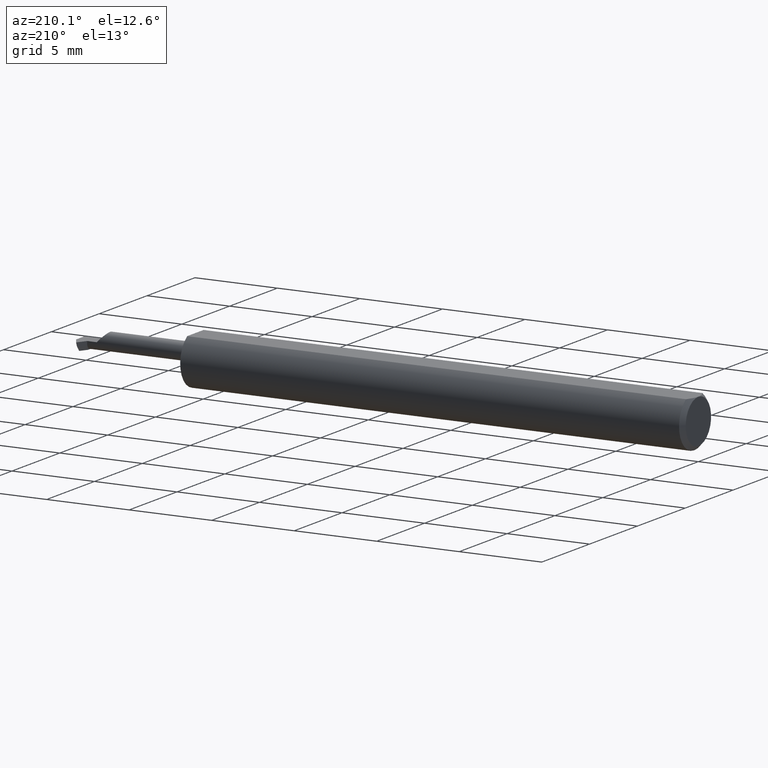
[diagram: clean part render]
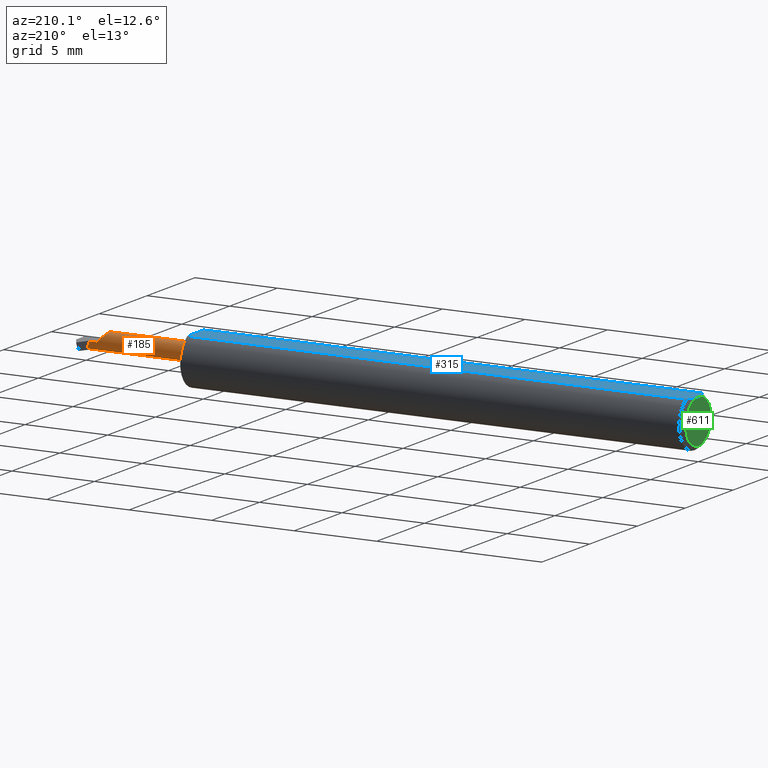
[diagram: same view with three faces highlighted in distinct colors, each labeled with its STEP entity id]
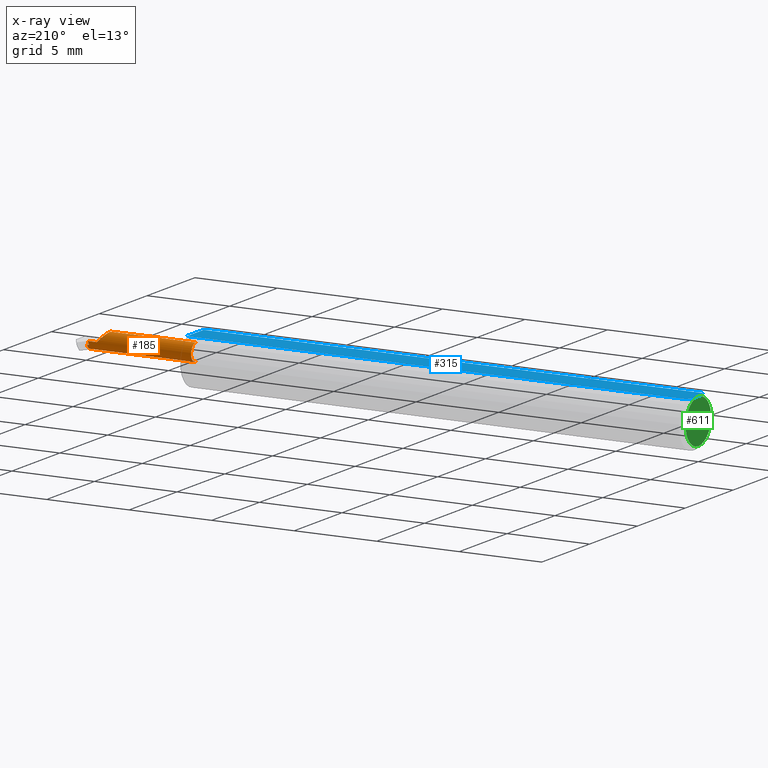
[diagram: x-ray of the same camera — body ghosted, the three highlighted faces saturated]
A machine part, auxiliary view with three faces highlighted in distinct colors.
The next image is the same camera in x-ray (body ghosted, the three faces saturated) — at least one of them is partly hidden behind the body in this view.
Their STEP definitions:

[orange] entity #185 — the highlighted cylindrical surface (edge-blend (fillet) strip) has radius 0.5207 mm, axis along (-1, -0, -0).
#9 =( BOUNDED_CURVE ( )  B_SPLINE_CURVE ( 3, ( #364, #112, #440, #378 ),
 .UNSPECIFIED., .F., .T. ) 
 B_SPLINE_CURVE_WITH_KNOTS ( ( 4, 4 ),
 ( 0.000000000000000000, 1.570796326794895670 ),
 .UNSPECIFIED. ) 
 CURVE ( )  GEOMETRIC_REPRESENTATION_ITEM ( )  RATIONAL_B_SPLINE_CURVE ( ( 1.000000000000000000, 0.8047378541243652705, 0.8047378541243652705, 1.000000000000000000 ) ) 
 REPRESENTATION_ITEM ( '' )  );
#12 = VERTEX_POINT ( 'NONE', #287 ) ;
#24 = ORIENTED_EDGE ( 'NONE', *, *, #42, .F. ) ;
#36 = FACE_OUTER_BOUND ( 'NONE', #279, .T. ) ;
#38 = DIRECTION ( 'NONE',  ( -1.000000000000000000, -0.000000000000000000, -0.000000000000000000 ) ) ;
#39 = CARTESIAN_POINT ( 'NONE',  ( 1.475386358967280653, -0.03736748372183578554, -0.02050000000000005290 ) ) ;
#42 = EDGE_CURVE ( 'NONE', #61, #467, #635, .T. ) ;
#48 = CARTESIAN_POINT ( 'NONE',  ( 1.474695953239303581, -0.03029403366202066891, -0.01581818553756960538 ) ) ;
#56 = CARTESIAN_POINT ( 'NONE',  ( 1.475581018059172633, -0.04585000000000002962, -0.02050000000000003555 ) ) ;
#61 = VERTEX_POINT ( 'NONE', #798 ) ;
#78 = VERTEX_POINT ( 'NONE', #360 ) ;
#93 = EDGE_CURVE ( 'NONE', #692, #61, #815, .T. ) ;
#94 =( BOUNDED_CURVE ( )  B_SPLINE_CURVE ( 3, ( #458, #711, #312, #126 ),
 .UNSPECIFIED., .F., .T. ) 
 B_SPLINE_CURVE_WITH_KNOTS ( ( 4, 4 ),
 ( 1.169370598836200648, 1.570796326794896780 ),
 .UNSPECIFIED. ) 
 CURVE ( )  GEOMETRIC_REPRESENTATION_ITEM ( )  RATIONAL_B_SPLINE_CURVE ( ( 1.000000000000000000, 0.9866164697472197265, 0.9866164697472197265, 1.000000000000000000 ) ) 
 REPRESENTATION_ITEM ( '' )  );
#112 = CARTESIAN_POINT ( 'NONE',  ( 1.429499999999999771, -0.03384137802864845695, 0.02050000000000004596 ) ) ;
#126 = CARTESIAN_POINT ( 'NONE',  ( 1.470951421547187499, -0.02534999999999999060, 0.000000000000000000 ) ) ;
#152 = DIRECTION ( 'NONE',  ( -1.000000000000000000, -0.000000000000000000, -0.000000000000000000 ) ) ;
#165 = LINE ( 'NONE', #438, #328 ) ;
#167 = EDGE_CURVE ( 'NONE', #692, #535, #9, .T. ) ;
#185 = ADVANCED_FACE ( 'NONE', ( #36 ), #566, .T. ) ;
#196 = CARTESIAN_POINT ( 'NONE',  ( 1.429499999999999771, -0.04585000000000002962, 0.02050000000000004596 ) ) ;
#246 = CARTESIAN_POINT ( 'NONE',  ( 1.200000000000000178, -0.04585000000000002962, 0.02050000000000004596 ) ) ;
#265 = CARTESIAN_POINT ( 'NONE',  ( 1.200000000000000178, -0.02534999999999999060, 3.673940397442077371E-17 ) ) ;
#267 = CARTESIAN_POINT ( 'NONE',  ( 1.473739173235127708, -0.02697965050422496472, -0.008009988134030069165 ) ) ;
#273 = AXIS2_PLACEMENT_3D ( 'NONE', #533, #605, #349 ) ;
#279 = EDGE_LOOP ( 'NONE', ( #303, #347, #24, #576, #724, #283, #626, #511 ) ) ;
#283 = ORIENTED_EDGE ( 'NONE', *, *, #342, .T. ) ;
#287 = CARTESIAN_POINT ( 'NONE',  ( 1.475581018059172633, -0.04585000000000002962, -0.02050000000000003555 ) ) ;
#303 = ORIENTED_EDGE ( 'NONE', *, *, #468, .F. ) ;
#309 = VECTOR ( 'NONE', #152, 39.37007874015748143 ) ;
#312 = CARTESIAN_POINT ( 'NONE',  ( 1.470389556322883484, -0.02534999999999998019, -0.002761655807752521567 ) ) ;
#328 = VECTOR ( 'NONE', #829, 39.37007874015748143 ) ;
#329 = CARTESIAN_POINT ( 'NONE',  ( 1.470951421547187499, -0.02534999999999999060, 0.000000000000000000 ) ) ;
#339 = AXIS2_PLACEMENT_3D ( 'NONE', #806, #557, #617 ) ;
#342 = EDGE_CURVE ( 'NONE', #535, #657, #585, .T. ) ;
#344 = EDGE_CURVE ( 'NONE', #78, #657, #94, .T. ) ;
#347 = ORIENTED_EDGE ( 'NONE', *, *, #411, .T. ) ;
#349 = DIRECTION ( 'NONE',  ( 0.000000000000000000, 0.000000000000000000, 1.000000000000000000 ) ) ;
#358 = CARTESIAN_POINT ( 'NONE',  ( 1.450000000000000178, -0.02534999999999999060, 3.673940397442077371E-17 ) ) ;
#360 = CARTESIAN_POINT ( 'NONE',  ( 1.469321771042962466, -0.02697965050422497166, -0.008009988134030147228 ) ) ;
#364 = CARTESIAN_POINT ( 'NONE',  ( 1.429499999999999771, -0.04585000000000002962, 0.02050000000000004596 ) ) ;
#378 = CARTESIAN_POINT ( 'NONE',  ( 1.450000000000000178, -0.02534999999999999060, 3.673940397442077371E-17 ) ) ;
#411 = EDGE_CURVE ( 'NONE', #12, #467, #728, .T. ) ;
#426 = CARTESIAN_POINT ( 'NONE',  ( 1.473739173235127708, -0.02697965050422496472, -0.008009988134030069165 ) ) ;
#436 =( BOUNDED_CURVE ( )  B_SPLINE_CURVE ( 3, ( #56, #39, #48, #426 ),
 .UNSPECIFIED., .F., .T. ) 
 B_SPLINE_CURVE_WITH_KNOTS ( ( 4, 4 ),
 ( 3.342305517569140960, 4.511676116405345383 ),
 .UNSPECIFIED. ) 
 CURVE ( )  GEOMETRIC_REPRESENTATION_ITEM ( )  RATIONAL_B_SPLINE_CURVE ( ( 1.000000000000000000, 0.8892572147114448100, 0.8892572147114448100, 1.000000000000000000 ) ) 
 REPRESENTATION_ITEM ( '' )  );
#438 = CARTESIAN_POINT ( 'NONE',  ( 1.200000000000000178, -0.02697965050422496472, -0.008009988134030126411 ) ) ;
#440 = CARTESIAN_POINT ( 'NONE',  ( 1.437991378028648626, -0.02534999999999999754, 0.01200862197135159001 ) ) ;
#458 = CARTESIAN_POINT ( 'NONE',  ( 1.469321771042962466, -0.02697965050422497166, -0.008009988134030147228 ) ) ;
#467 = VERTEX_POINT ( 'NONE', #614 ) ;
#468 = EDGE_CURVE ( 'NONE', #12, #679, #436, .T. ) ;
#511 = ORIENTED_EDGE ( 'NONE', *, *, #608, .F. ) ;
#528 = VECTOR ( 'NONE', #38, 39.37007874015748143 ) ;
#533 = CARTESIAN_POINT ( 'NONE',  ( 1.225000000000000089, -0.04585000000000002962, 0.000000000000000000 ) ) ;
#535 = VERTEX_POINT ( 'NONE', #358 ) ;
#557 = DIRECTION ( 'NONE',  ( -1.000000000000000000, -0.000000000000000000, -0.000000000000000000 ) ) ;
#566 = CYLINDRICAL_SURFACE ( 'NONE', #339, 0.02050000000000004596 ) ;
#576 = ORIENTED_EDGE ( 'NONE', *, *, #93, .F. ) ;
#585 = LINE ( 'NONE', #265, #749 ) ;
#605 = DIRECTION ( 'NONE',  ( -1.000000000000000000, -0.000000000000000000, -0.000000000000000000 ) ) ;
#608 = EDGE_CURVE ( 'NONE', #679, #78, #165, .T. ) ;
#614 = CARTESIAN_POINT ( 'NONE',  ( 1.225000000000000089, -0.04585000000000002268, -0.02050000000000005984 ) ) ;
#617 = DIRECTION ( 'NONE',  ( 0.000000000000000000, 0.000000000000000000, 1.000000000000000000 ) ) ;
#626 = ORIENTED_EDGE ( 'NONE', *, *, #344, .F. ) ;
#632 = DIRECTION ( 'NONE',  ( 1.000000000000000000, 0.000000000000000000, 0.000000000000000000 ) ) ;
#635 = CIRCLE ( 'NONE', #273, 0.02050000000000005984 ) ;
#657 = VERTEX_POINT ( 'NONE', #329 ) ;
#658 = CARTESIAN_POINT ( 'NONE',  ( 1.200000000000000178, -0.04585000000000002962, -0.02050000000000004596 ) ) ;
#679 = VERTEX_POINT ( 'NONE', #267 ) ;
#692 = VERTEX_POINT ( 'NONE', #196 ) ;
#711 = CARTESIAN_POINT ( 'NONE',  ( 1.469838970708920556, -0.02590058561396285305, -0.005467870559428816314 ) ) ;
#724 = ORIENTED_EDGE ( 'NONE', *, *, #167, .T. ) ;
#728 = LINE ( 'NONE', #658, #309 ) ;
#749 = VECTOR ( 'NONE', #632, 39.37007874015748143 ) ;
#798 = CARTESIAN_POINT ( 'NONE',  ( 1.225000000000000089, -0.04585000000000002962, 0.02050000000000005984 ) ) ;
#806 = CARTESIAN_POINT ( 'NONE',  ( 1.200000000000000178, -0.04585000000000002962, 0.000000000000000000 ) ) ;
#815 = LINE ( 'NONE', #246, #528 ) ;
#829 = DIRECTION ( 'NONE',  ( -1.000000000000000000, -0.000000000000000000, -0.000000000000000000 ) ) ;

[blue] entity #315 — the highlighted planar face has unit normal (0, 0, 1).
#37 = LINE ( 'NONE', #371, #783 ) ;
#44 = VECTOR ( 'NONE', #509, 39.37007874015748143 ) ;
#46 = CARTESIAN_POINT ( 'NONE',  ( 0.000000000000000000, 0.000000000000000000, 0.05234999999999997294 ) ) ;
#76 = LINE ( 'NONE', #250, #44 ) ;
#98 = CARTESIAN_POINT ( 'NONE',  ( 0.009999999999999887451, 0.03386738844375224849, 0.05234999999999997294 ) ) ;
#124 = B_SPLINE_CURVE_WITH_KNOTS ( 'NONE', 3,
 ( #408, #530, #534, #272, #655, #345 ),
 .UNSPECIFIED., .F., .F.,
 ( 4, 2, 4 ),
 ( 0.002189598257423874383, 0.002641492532680540361, 0.003093386807937206339 ),
 .UNSPECIFIED. ) ;
#154 = ORIENTED_EDGE ( 'NONE', *, *, #601, .T. ) ;
#163 = EDGE_CURVE ( 'NONE', #372, #757, #810, .T. ) ;
#181 = DIRECTION ( 'NONE',  ( 0.000000000000000000, 1.000000000000000000, 0.000000000000000000 ) ) ;
#198 = EDGE_CURVE ( 'NONE', #274, #757, #517, .T. ) ;
#205 = PLANE ( 'NONE',  #804 ) ;
#250 = CARTESIAN_POINT ( 'NONE',  ( 0.000000000000000000, -0.03386738844375224849, 0.05234999999999997294 ) ) ;
#259 = ORIENTED_EDGE ( 'NONE', *, *, #352, .T. ) ;
#272 = CARTESIAN_POINT ( 'NONE',  ( 0.001055043921632921322, -0.01186408073210964975, 0.05234999999999997988 ) ) ;
#274 = VERTEX_POINT ( 'NONE', #322 ) ;
#289 = CARTESIAN_POINT ( 'NONE',  ( 0.009999999999999887451, 0.03386738844375224849, 0.05234999999999997294 ) ) ;
#297 = CARTESIAN_POINT ( 'NONE',  ( 0.001063697276021325104, 0.01189177144351695990, 0.05234999999999997988 ) ) ;
#306 = CARTESIAN_POINT ( 'NONE',  ( 0.000000000000000000, 0.03386738844375224849, 0.05234999999999997294 ) ) ;
#315 = ADVANCED_FACE ( 'NONE', ( #770 ), #205, .T. ) ;
#322 = CARTESIAN_POINT ( 'NONE',  ( 0.000000000000000000, 0.000000000000000000, 0.05234999999999997294 ) ) ;
#345 = CARTESIAN_POINT ( 'NONE',  ( 0.000000000000000000, 0.000000000000000000, 0.05234999999999997294 ) ) ;
#352 = EDGE_CURVE ( 'NONE', #565, #478, #76, .T. ) ;
#371 = CARTESIAN_POINT ( 'NONE',  ( 1.200000000000000400, 0.06235000000000000264, 0.05234999999999997294 ) ) ;
#372 = VERTEX_POINT ( 'NONE', #470 ) ;
#377 = EDGE_CURVE ( 'NONE', #565, #274, #124, .T. ) ;
#398 = ORIENTED_EDGE ( 'NONE', *, *, #198, .F. ) ;
#405 = ORIENTED_EDGE ( 'NONE', *, *, #163, .T. ) ;
#408 = CARTESIAN_POINT ( 'NONE',  ( 0.009999999999999887451, -0.03386738844375224849, 0.05234999999999997294 ) ) ;
#410 = ORIENTED_EDGE ( 'NONE', *, *, #377, .F. ) ;
#437 = CARTESIAN_POINT ( 'NONE',  ( 0.004671770759546750584, 0.02323517832780109052, 0.05234999999999998682 ) ) ;
#470 = CARTESIAN_POINT ( 'NONE',  ( 1.200000000000000400, 0.03386738844375224849, 0.05234999999999997294 ) ) ;
#478 = VERTEX_POINT ( 'NONE', #491 ) ;
#490 = CARTESIAN_POINT ( 'NONE',  ( -1.133440131013889109E-15, 0.005954997531774002505, 0.05234999999999997294 ) ) ;
#491 = CARTESIAN_POINT ( 'NONE',  ( 1.200000000000000400, -0.03386738844375225543, 0.05234999999999997294 ) ) ;
#499 = DIRECTION ( 'NONE',  ( -1.000000000000000000, -0.000000000000000000, -0.000000000000000000 ) ) ;
#509 = DIRECTION ( 'NONE',  ( 1.000000000000000000, 0.000000000000000000, 0.000000000000000000 ) ) ;
#517 = B_SPLINE_CURVE_WITH_KNOTS ( 'NONE', 3,
 ( #46, #490, #297, #437, #738, #289 ),
 .UNSPECIFIED., .F., .F.,
 ( 4, 2, 4 ),
 ( 0.003093386807937206339, 0.003544501666246027347, 0.003995616524554848788 ),
 .UNSPECIFIED. ) ;
#530 = CARTESIAN_POINT ( 'NONE',  ( 0.007163450771350382031, -0.02864528976618618133, 0.05234999999999997294 ) ) ;
#534 = CARTESIAN_POINT ( 'NONE',  ( 0.004679365186780987812, -0.02325953974079660730, 0.05234999999999997988 ) ) ;
#565 = VERTEX_POINT ( 'NONE', #756 ) ;
#574 = CARTESIAN_POINT ( 'NONE',  ( 1.630958352158234037, 0.06235000000000000264, 0.05234999999999997294 ) ) ;
#601 = EDGE_CURVE ( 'NONE', #478, #372, #37, .T. ) ;
#655 = CARTESIAN_POINT ( 'NONE',  ( -1.104610997828796865E-15, -0.005965286321680308458, 0.05234999999999996600 ) ) ;
#661 = VECTOR ( 'NONE', #499, 39.37007874015748143 ) ;
#704 = DIRECTION ( 'NONE',  ( 1.000000000000000000, 0.000000000000000000, -0.000000000000000000 ) ) ;
#707 = DIRECTION ( 'NONE',  ( 0.000000000000000000, 0.000000000000000000, 1.000000000000000000 ) ) ;
#713 = EDGE_LOOP ( 'NONE', ( #259, #154, #405, #398, #410 ) ) ;
#738 = CARTESIAN_POINT ( 'NONE',  ( 0.007185421074056196067, 0.02868573718286566293, 0.05234999999999997294 ) ) ;
#756 = CARTESIAN_POINT ( 'NONE',  ( 0.009999999999999887451, -0.03386738844375224849, 0.05234999999999997294 ) ) ;
#757 = VERTEX_POINT ( 'NONE', #98 ) ;
#770 = FACE_OUTER_BOUND ( 'NONE', #713, .T. ) ;
#783 = VECTOR ( 'NONE', #181, 39.37007874015748143 ) ;
#804 = AXIS2_PLACEMENT_3D ( 'NONE', #574, #707, #704 ) ;
#810 = LINE ( 'NONE', #306, #661 ) ;

[green] entity #611 — the highlighted planar face has unit normal (1, 0, 0).
#8 = EDGE_CURVE ( 'NONE', #274, #718, #284, .T. ) ;
#71 = PLANE ( 'NONE',  #285 ) ;
#187 = ORIENTED_EDGE ( 'NONE', *, *, #631, .T. ) ;
#190 = FACE_OUTER_BOUND ( 'NONE', #615, .T. ) ;
#215 = DIRECTION ( 'NONE',  ( -1.000000000000000000, -0.000000000000000000, -0.000000000000000000 ) ) ;
#223 = DIRECTION ( 'NONE',  ( 0.000000000000000000, 0.000000000000000000, -1.000000000000000000 ) ) ;
#262 = AXIS2_PLACEMENT_3D ( 'NONE', #319, #463, #332 ) ;
#274 = VERTEX_POINT ( 'NONE', #322 ) ;
#284 = CIRCLE ( 'NONE', #795, 0.05235000000000033377 ) ;
#285 = AXIS2_PLACEMENT_3D ( 'NONE', #779, #772, #575 ) ;
#319 = CARTESIAN_POINT ( 'NONE',  ( 0.000000000000000000, 0.000000000000000000, 0.000000000000000000 ) ) ;
#322 = CARTESIAN_POINT ( 'NONE',  ( 0.000000000000000000, 0.000000000000000000, 0.05234999999999997294 ) ) ;
#332 = DIRECTION ( 'NONE',  ( 0.000000000000000000, 0.000000000000000000, -1.000000000000000000 ) ) ;
#418 = CIRCLE ( 'NONE', #262, 0.05235000000000033377 ) ;
#463 = DIRECTION ( 'NONE',  ( -1.000000000000000000, -0.000000000000000000, -0.000000000000000000 ) ) ;
#538 = CARTESIAN_POINT ( 'NONE',  ( 0.000000000000000000, 0.000000000000000000, 0.000000000000000000 ) ) ;
#575 = DIRECTION ( 'NONE',  ( 0.000000000000000000, 0.000000000000000000, -1.000000000000000000 ) ) ;
#590 = ORIENTED_EDGE ( 'NONE', *, *, #8, .T. ) ;
#611 = ADVANCED_FACE ( 'NONE', ( #190 ), #71, .F. ) ;
#615 = EDGE_LOOP ( 'NONE', ( #590, #187 ) ) ;
#631 = EDGE_CURVE ( 'NONE', #718, #274, #418, .T. ) ;
#644 = CARTESIAN_POINT ( 'NONE',  ( 0.000000000000000000, 0.000000000000000000, -0.05235000000000033377 ) ) ;
#718 = VERTEX_POINT ( 'NONE', #644 ) ;
#772 = DIRECTION ( 'NONE',  ( 1.000000000000000000, 0.000000000000000000, 0.000000000000000000 ) ) ;
#779 = CARTESIAN_POINT ( 'NONE',  ( 0.000000000000000000, 0.000000000000000000, 0.000000000000000000 ) ) ;
#795 = AXIS2_PLACEMENT_3D ( 'NONE', #538, #215, #223 ) ;